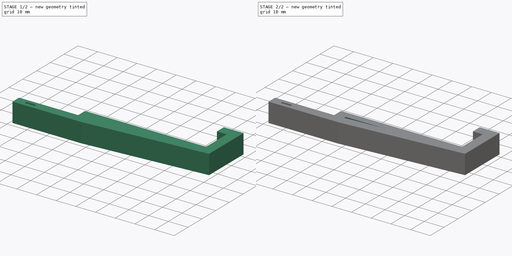
[diagram: build sequence overview — one tinted view per stage of 2, left to right]
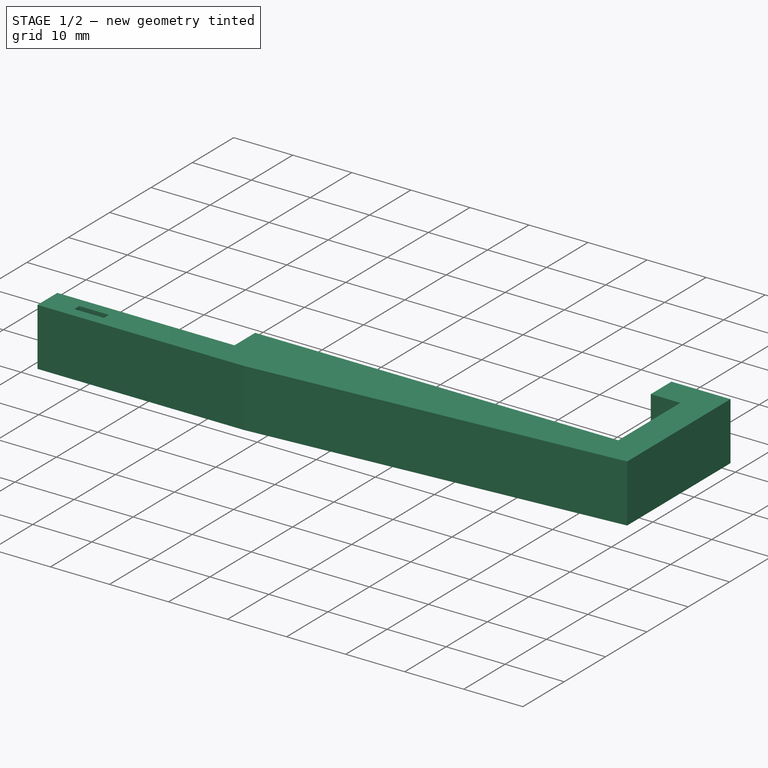
[diagram: stage 1 of 2 — iso view after this stage's code; geometry added in this stage tinted green]
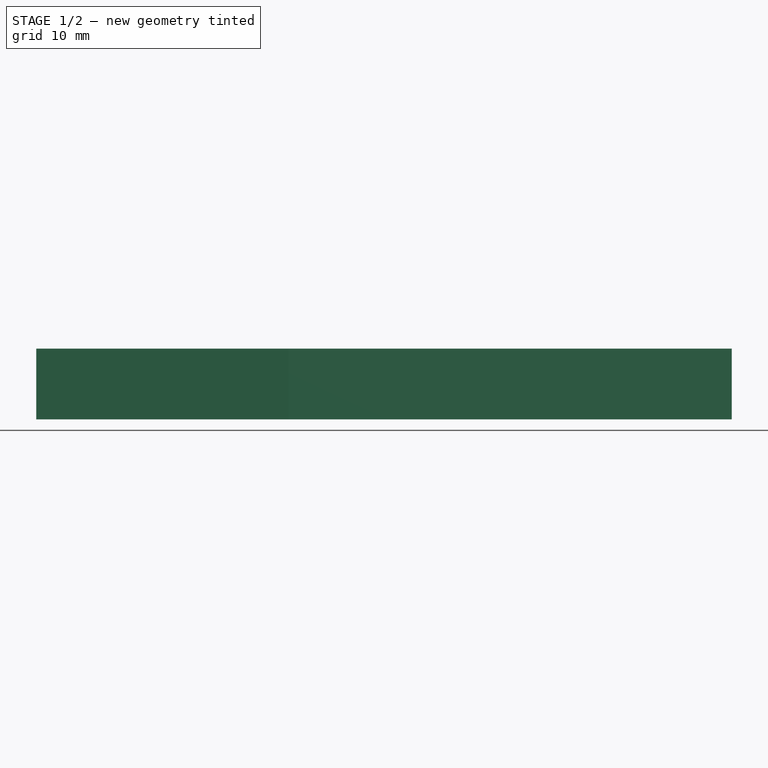
[diagram: stage 1 of 2 — front view after this stage's code; geometry added in this stage tinted green]
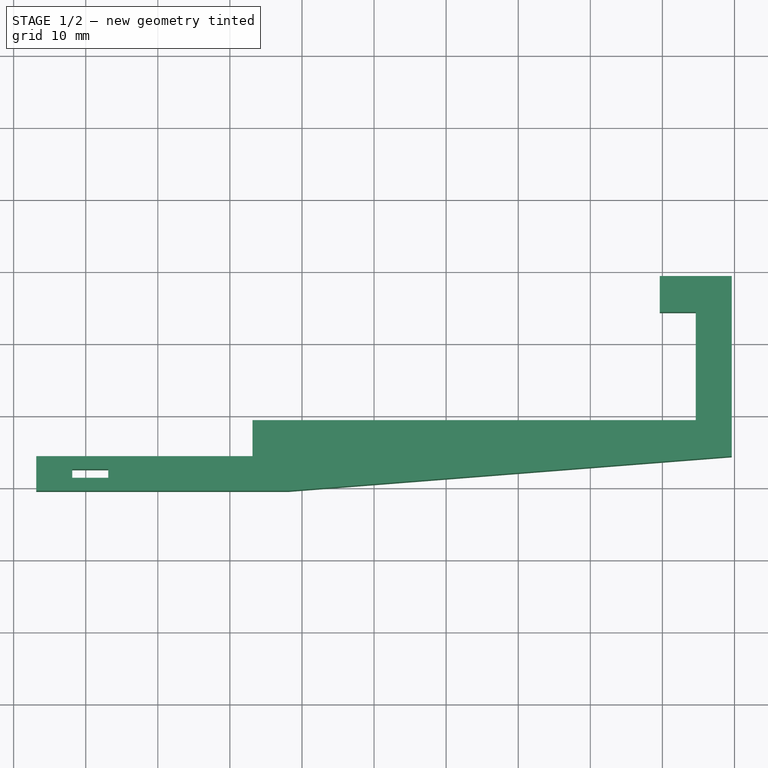
[diagram: stage 1 of 2 — top view after this stage's code; geometry added in this stage tinted green]
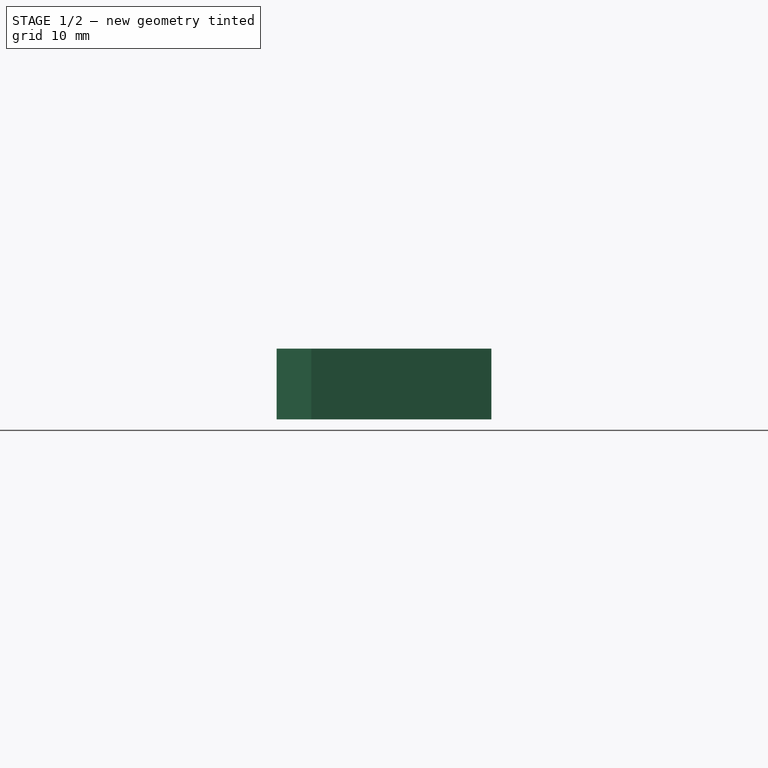
[diagram: stage 1 of 2 — right view after this stage's code; geometry added in this stage tinted green]
FCSTD DOCUMENT  (FreeCAD 0.14R3700 (Git))
Label: bike
License: CC-BY 3.0
LicenseURL: http://creativecommons.org/licenses/by/3.0/
objects: Sketcher::SketchObject×2, PartDesign::Pad×1, PartDesign::Pocket×1
note: 6 computed .brp shape members not serialized (recipe doc carries the construction recipe); baked Part::Feature solids carry a one-line shape summary decoded from their .brp

FEATURE [Sketcher::SketchObject] Sketch
  sketch-geometry (15):
    g0: LineSegment StartX=-26.8718 StartY=-5.67363 StartZ=0 EndX=-56.8718 EndY=-5.67363 EndZ=0
    g1: LineSegment StartX=-56.8718 StartY=-5.67363 StartZ=0 EndX=-56.8718 EndY=-10.4736 EndZ=0
    g2: LineSegment StartX=-56.8718 StartY=-10.4736 StartZ=0 EndX=-21.8718 EndY=-10.4736 EndZ=0
    g3: LineSegment StartX=-21.8718 StartY=-10.4736 StartZ=0 EndX=39.6282 EndY=-5.67363 EndZ=0
    g4: LineSegment StartX=39.6282 StartY=-5.67363 StartZ=0 EndX=39.6282 EndY=19.3264 EndZ=0
    g5: LineSegment StartX=39.6282 StartY=19.3264 StartZ=0 EndX=29.6282 EndY=19.3264 EndZ=0
    g6: LineSegment StartX=29.6282 StartY=19.3264 StartZ=0 EndX=29.6282 EndY=14.3264 EndZ=0
    g7: LineSegment StartX=29.6282 StartY=14.3264 StartZ=0 EndX=34.6282 EndY=14.3264 EndZ=0
    g8: LineSegment StartX=34.6282 StartY=14.3264 StartZ=0 EndX=34.6282 EndY=-0.673633 EndZ=0
    g9: LineSegment StartX=34.6282 StartY=-0.673633 StartZ=0 EndX=-26.8718 EndY=-0.673633 EndZ=0
    g10: LineSegment StartX=-26.8718 StartY=-0.673633 StartZ=0 EndX=-26.8718 EndY=-5.67363 EndZ=0
    g11: LineSegment StartX=-51.8718 StartY=-7.47363 StartZ=0 EndX=-46.8718 EndY=-7.47363 EndZ=0
    g12: LineSegment StartX=-46.8718 StartY=-7.47363 StartZ=0 EndX=-46.8718 EndY=-8.67363 EndZ=0
    g13: LineSegment StartX=-46.8718 StartY=-8.67363 StartZ=0 EndX=-51.8718 EndY=-8.67363 EndZ=0
    g14: LineSegment StartX=-51.8718 StartY=-8.67363 StartZ=0 EndX=-51.8718 EndY=-7.47363 EndZ=0
  constraints (43):
    c: Coincident(g0,g1)
    c: Coincident(g1,g2)
    c: Coincident(g3,g4)
    c: Coincident(g4,g5)
    c: Coincident(g5,g6)
    c: Coincident(g6,g7)
    c: Coincident(g7,g8)
    c: Coincident(g8,g9)
    c: Coincident(g9,g10)
    c: Coincident(g0,g10)
    c: Horizontal(g0)
    c: Horizontal(g2)
    c: Vertical(g1)
    c: Horizontal(g9)
    c: Vertical(g8)
    c: Vertical(g4)
    c: Horizontal(g5)
    c: Horizontal(g7)
    c: Vertical(g6)
    c: DistanceY(g6,g5) = 5
    c: DistanceX(g7,g4) = 5
    c: DistanceX(g7,g6) = -5
    c: DistanceY(g8,g7) = 15
    c: DistanceY(g3,g8) = 5
    c: DistanceX(g9,g2) = 5
    c: Vertical(g10)
    c: DistanceY(g0,g2) = -4.8
    c: DistanceX(g0,g1) = -30
    c: PointOnObject(g3,g0)
    c: Coincident(g3,g2)
    c: DistanceX(g8,g9) = -61.5
    c: Coincident(g11,g12)
    c: Coincident(g12,g13)
    c: Coincident(g13,g14)
    c: Coincident(g14,g11)
    c: Horizontal(g11)
    c: Horizontal(g13)
    c: Vertical(g12)
    c: Vertical(g14)
    c: DistanceX(g11,g0) = -10
    c: DistanceY(g1,g13) = 1.8
    c: DistanceY(g0,g11) = -1.8
    c: DistanceX(g12,g13) = -5
FEATURE [PartDesign::Pad] Pad
  Length = 9.8
  Length2 = 100
  Sketch = -> Sketch
  Type = 0
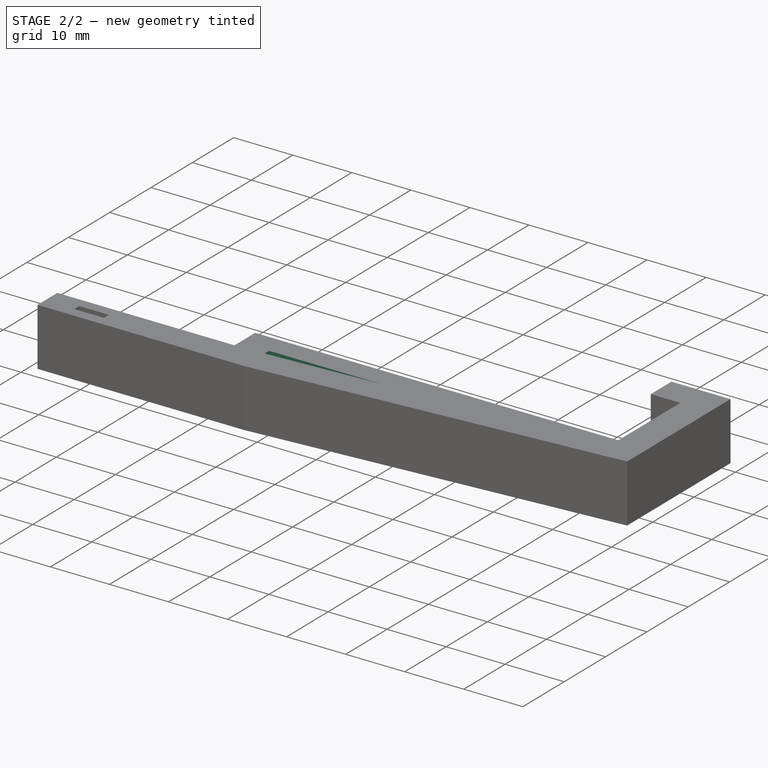
[diagram: stage 2 of 2 — iso view after this stage's code; geometry added in this stage tinted green]
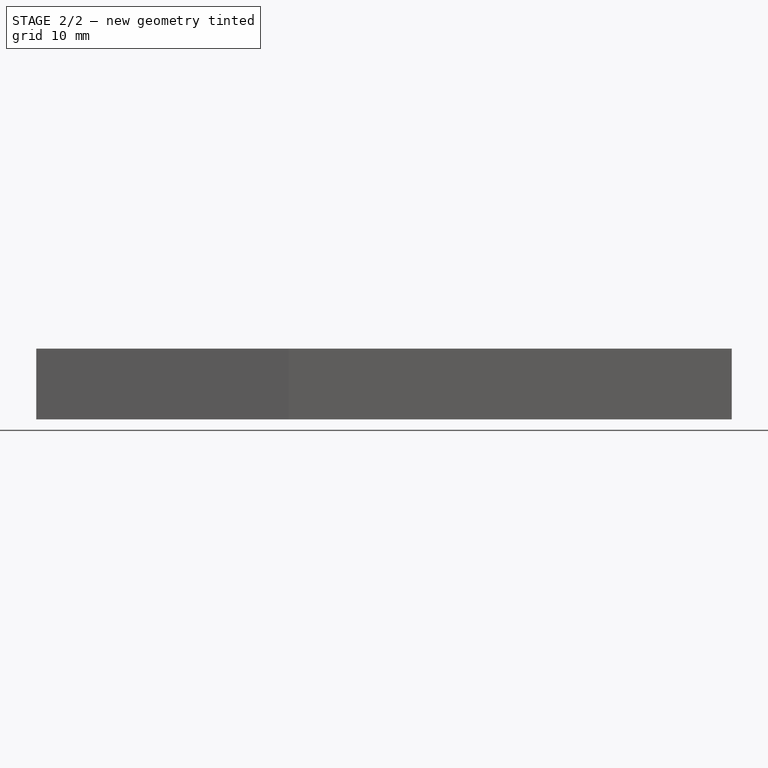
[diagram: stage 2 of 2 — front view after this stage's code; geometry added in this stage tinted green]
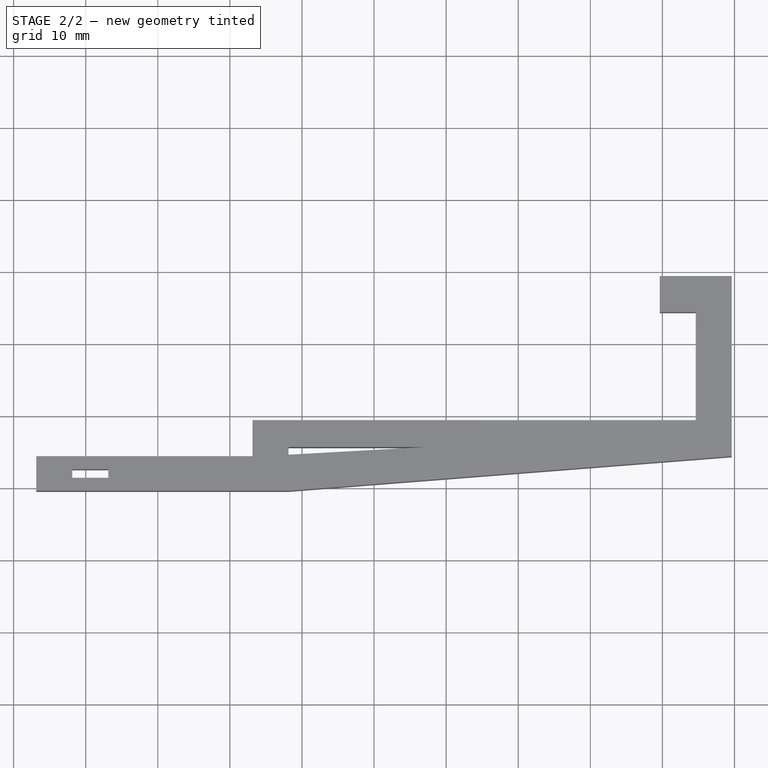
[diagram: stage 2 of 2 — top view after this stage's code; geometry added in this stage tinted green]
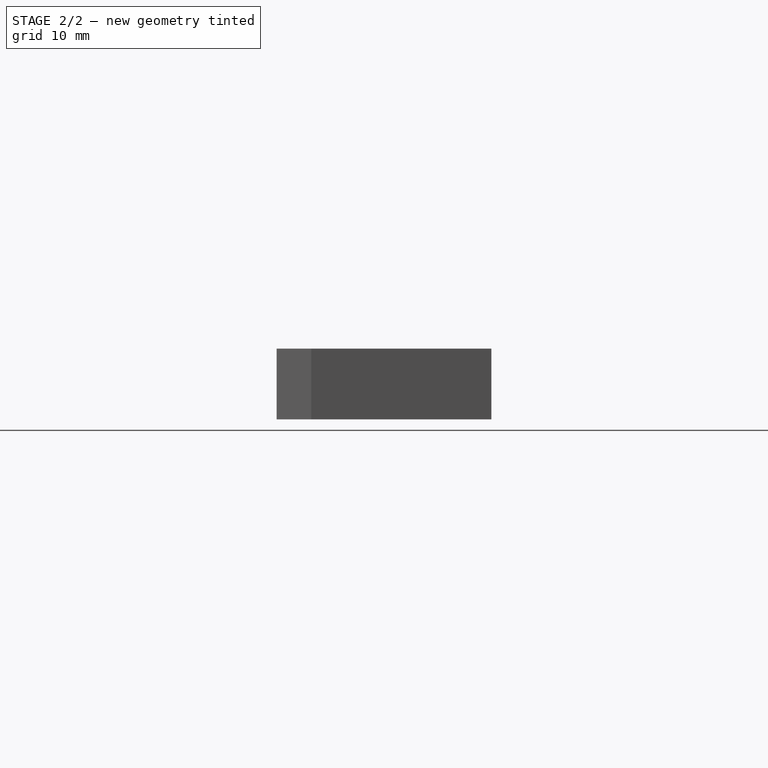
[diagram: stage 2 of 2 — right view after this stage's code; geometry added in this stage tinted green]
FEATURE [Sketcher::SketchObject] Sketch001
  ExternalGeometry = -> [Pad]
  Placement = pos=(0,0,9.8) rot=(0,0,1;0rad)
  Support = -> Pad [Face17]
  sketch-geometry (3):
    g0: LineSegment StartX=-21.8718 StartY=-4.40527 StartZ=0 EndX=-21.8718 EndY=-5.46576 EndZ=0
    g1: LineSegment StartX=-21.8718 StartY=-5.46576 StartZ=0 EndX=-2.9823 EndY=-4.40527 EndZ=0
    g2: LineSegment StartX=-2.9823 StartY=-4.40527 StartZ=0 EndX=-21.8718 EndY=-4.40527 EndZ=0
  constraints (7):
    c: Coincident(g0,g1)
    c: Coincident(g1,g2)
    c: Coincident(g0,g2)
    c: DistanceX(g0,g-5) = -5
    c: Vertical(g0)
    c: Horizontal(g2)
    c: Distance(g-4,g1) = 5
FEATURE [PartDesign::Pocket] Pocket
  Length = 5
  Sketch = -> Sketch001
  Type = 1
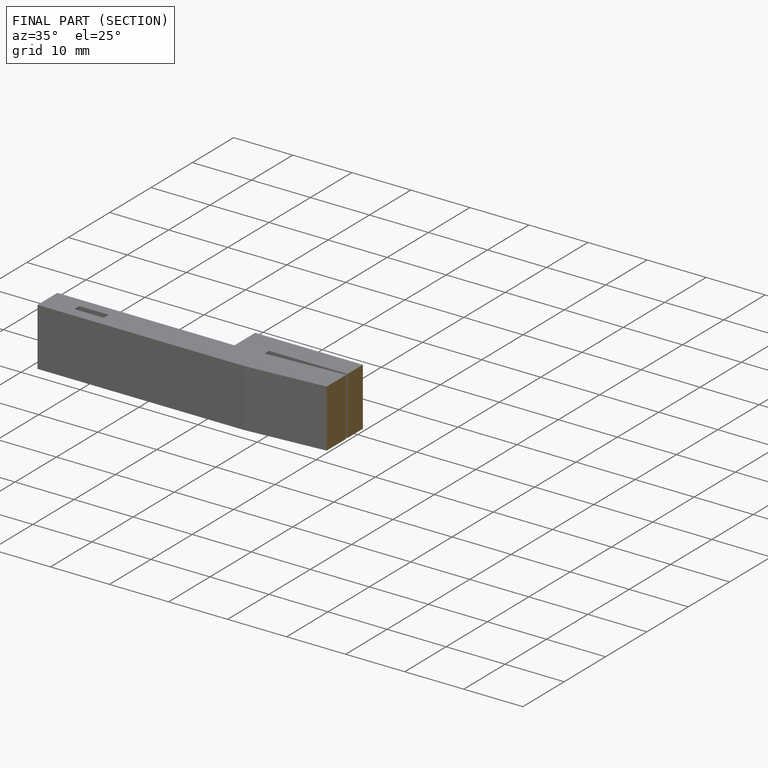
[diagram: finished part — half-section view (interior)]
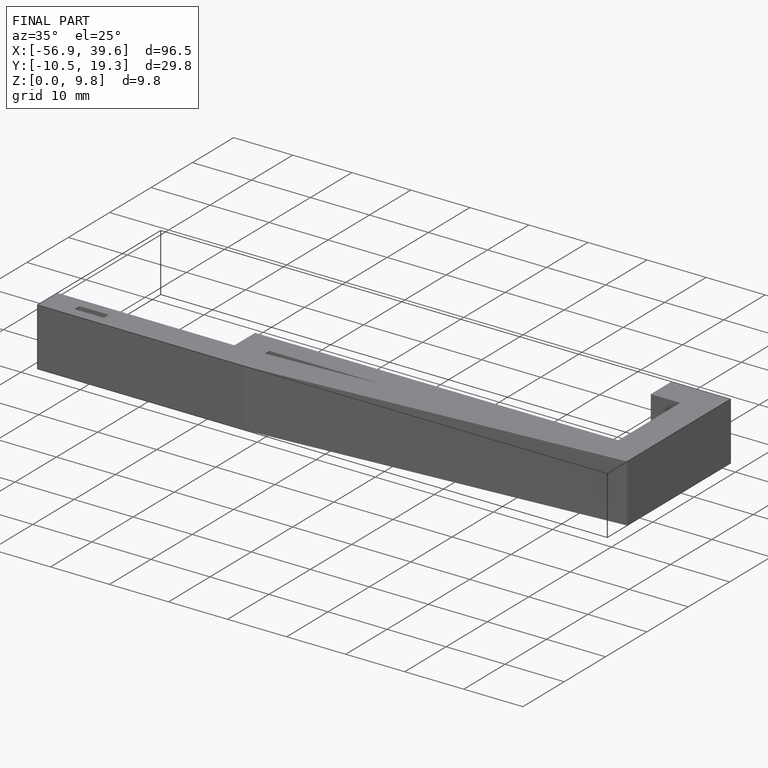
[diagram: finished part — iso view with bounding-box wireframe]
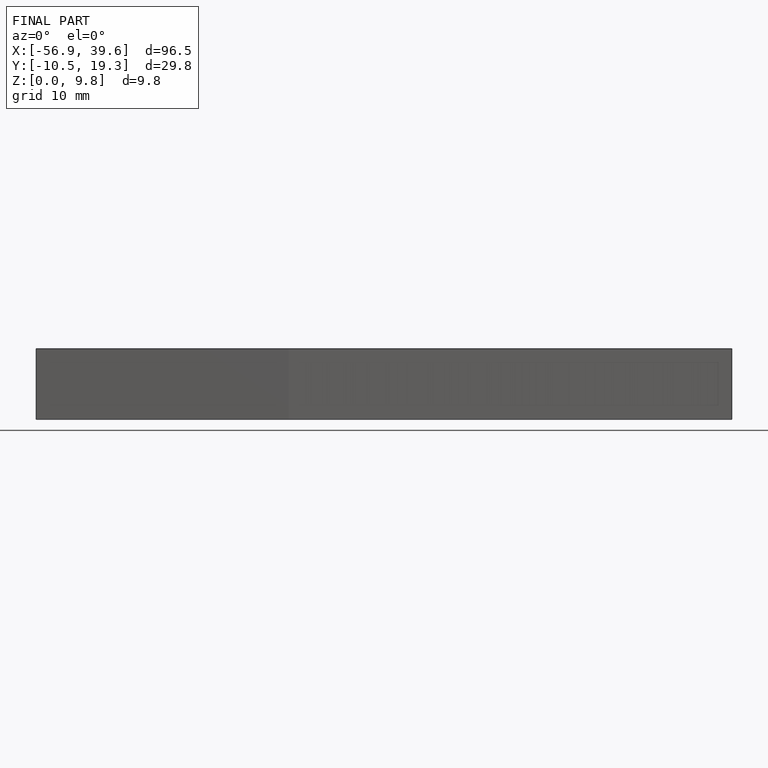
[diagram: finished part — front view with bounding-box wireframe]
